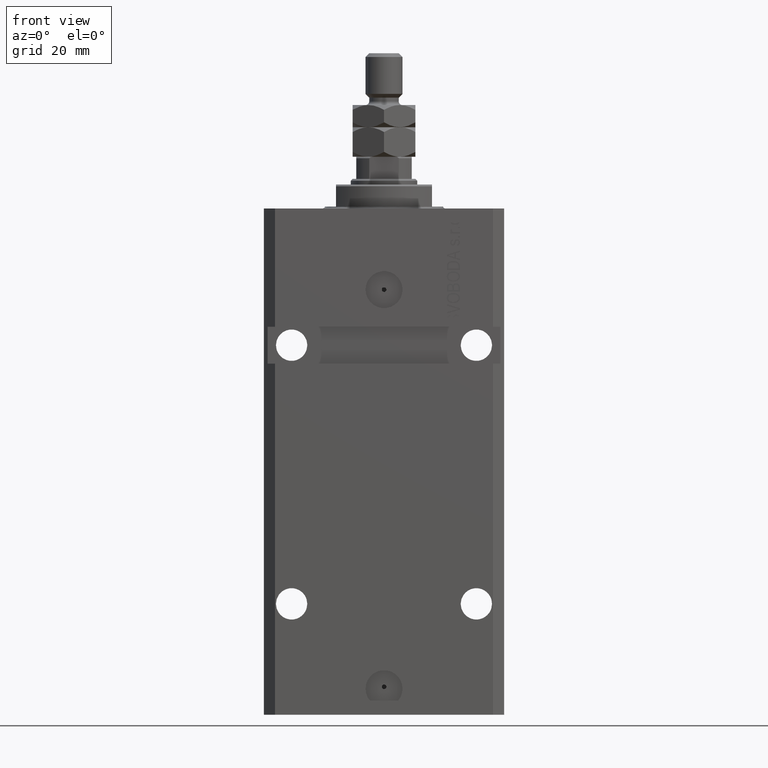
[diagram: clean part render]
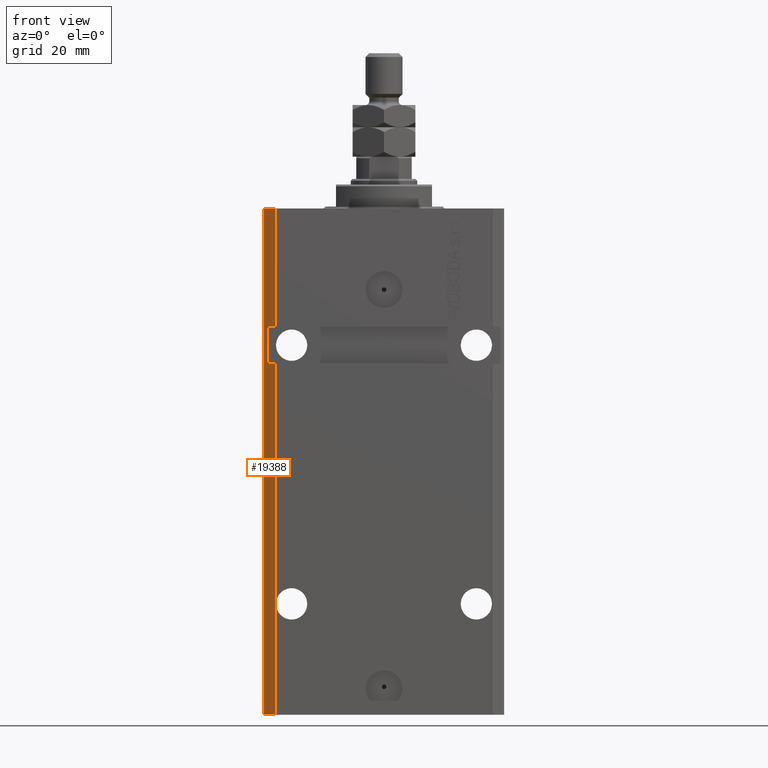
[diagram: same view with one face highlighted and labeled with its STEP entity id]
A machine part, front view. The second image highlights one B-rep face of the part: STEP entity #19388.
In plain terms, the highlighted planar face has unit normal (-0.7071, -0.7071, 0).
Its self-contained STEP definition (entity closure, byte-faithful):
#749 = DIRECTION ( 'NONE',  ( -0.7071067811865474617, 0.7071067811865474617, 7.548521435980497974E-17 ) ) ;
#1183 = CARTESIAN_POINT ( 'NONE',  ( -29.49999999999650058, -22.49999999999949907, -32.00000000000000000 ) ) ;
#1347 = CARTESIAN_POINT ( 'NONE',  ( -31.49999999999650413, -20.49999999999949907, -41.99999999999999289 ) ) ;
#1406 = ORIENTED_EDGE ( 'NONE', *, *, #32799, .F. ) ;
#1527 = DIRECTION ( 'NONE',  ( 0.000000000000000000, 0.000000000000000000, 1.000000000000000000 ) ) ;
#1742 = CARTESIAN_POINT ( 'NONE',  ( -29.49999999999650413, -22.49999999999949907, -137.0000000000000000 ) ) ;
#3393 = EDGE_CURVE ( 'NONE', #25099, #46829, #6194, .T. ) ;
#3862 = FACE_OUTER_BOUND ( 'NONE', #27138, .T. ) ;
#4555 = CARTESIAN_POINT ( 'NONE',  ( -29.49999999999650413, -22.49999999999949907, 0.000000000000000000 ) ) ;
#4689 = VECTOR ( 'NONE', #1527, 1000.000000000000000 ) ;
#6055 = EDGE_CURVE ( 'NONE', #25099, #16086, #44796, .T. ) ;
#6194 = LINE ( 'NONE', #9463, #14340 ) ;
#6751 = CARTESIAN_POINT ( 'NONE',  ( -31.49999999999650413, -20.49999999999950262, -137.0000000000000000 ) ) ;
#8007 = EDGE_CURVE ( 'NONE', #40226, #22679, #17387, .T. ) ;
#8889 = AXIS2_PLACEMENT_3D ( 'NONE', #18743, #18987, #33611 ) ;
#9463 = CARTESIAN_POINT ( 'NONE',  ( -32.49999999999650413, -19.49999999999949907, -137.0000000000000000 ) ) ;
#10028 = LINE ( 'NONE', #10277, #34219 ) ;
#10277 = CARTESIAN_POINT ( 'NONE',  ( -32.49999999999651124, -19.49999999999949551, -41.99999999999999289 ) ) ;
#10515 = ORIENTED_EDGE ( 'NONE', *, *, #15046, .F. ) ;
#11803 = DIRECTION ( 'NONE',  ( 0.7071067811865474617, -0.7071067811865474617, 0.000000000000000000 ) ) ;
#11994 = VECTOR ( 'NONE', #40532, 1000.000000000000114 ) ;
#14340 = VECTOR ( 'NONE', #37164, 1000.000000000000000 ) ;
#14630 = ORIENTED_EDGE ( 'NONE', *, *, #26132, .T. ) ;
#15046 = EDGE_CURVE ( 'NONE', #18926, #22679, #27958, .T. ) ;
#16086 = VERTEX_POINT ( 'NONE', #1742 ) ;
#17124 = CARTESIAN_POINT ( 'NONE',  ( -32.49999999999650413, -19.49999999999949907, -137.0000000000000000 ) ) ;
#17387 = LINE ( 'NONE', #6751, #4689 ) ;
#18234 = PLANE ( 'NONE',  #8889 ) ;
#18577 = VERTEX_POINT ( 'NONE', #21134 ) ;
#18686 = LINE ( 'NONE', #45359, #21512 ) ;
#18743 = CARTESIAN_POINT ( 'NONE',  ( -32.49999999999650413, -19.49999999999949907, -137.0000000000000000 ) ) ;
#18926 = VERTEX_POINT ( 'NONE', #1183 ) ;
#18987 = DIRECTION ( 'NONE',  ( -0.7071067811865475727, -0.7071067811865475727, 0.000000000000000000 ) ) ;
#19388 = ADVANCED_FACE ( 'NONE', ( #3862 ), #18234, .T. ) ;
#21134 = CARTESIAN_POINT ( 'NONE',  ( -29.49999999999650413, -22.49999999999949907, -41.99999999999999289 ) ) ;
#21512 = VECTOR ( 'NONE', #33309, 1000.000000000000000 ) ;
#21612 = EDGE_CURVE ( 'NONE', #46829, #39195, #42771, .T. ) ;
#22679 = VERTEX_POINT ( 'NONE', #46779 ) ;
#24839 = DIRECTION ( 'NONE',  ( 0.000000000000000000, 0.000000000000000000, 1.000000000000000000 ) ) ;
#25099 = VERTEX_POINT ( 'NONE', #41732 ) ;
#25407 = DIRECTION ( 'NONE',  ( 0.7071067811865474617, -0.7071067811865474617, 7.548521435980497974E-17 ) ) ;
#26132 = EDGE_CURVE ( 'NONE', #16086, #18577, #32903, .T. ) ;
#27138 = EDGE_LOOP ( 'NONE', ( #1406, #48856, #10515, #37955, #41219, #33914, #48724, #14630 ) ) ;
#27553 = VECTOR ( 'NONE', #11803, 1000.000000000000114 ) ;
#27958 = LINE ( 'NONE', #28444, #29015 ) ;
#28444 = CARTESIAN_POINT ( 'NONE',  ( -32.49999999999649702, -19.49999999999950617, -32.00000000000000000 ) ) ;
#29015 = VECTOR ( 'NONE', #749, 1000.000000000000114 ) ;
#31703 = VECTOR ( 'NONE', #24839, 1000.000000000000000 ) ;
#32799 = EDGE_CURVE ( 'NONE', #40226, #18577, #10028, .T. ) ;
#32903 = LINE ( 'NONE', #36660, #31703 ) ;
#33068 = CARTESIAN_POINT ( 'NONE',  ( -32.49999999999650413, -19.49999999999949907, 0.000000000000000000 ) ) ;
#33309 = DIRECTION ( 'NONE',  ( 0.000000000000000000, 0.000000000000000000, 1.000000000000000000 ) ) ;
#33611 = DIRECTION ( 'NONE',  ( 0.7071067811865474617, -0.7071067811865474617, 0.000000000000000000 ) ) ;
#33914 = ORIENTED_EDGE ( 'NONE', *, *, #3393, .F. ) ;
#34219 = VECTOR ( 'NONE', #25407, 1000.000000000000114 ) ;
#36660 = CARTESIAN_POINT ( 'NONE',  ( -29.49999999999650413, -22.49999999999949907, -137.0000000000000000 ) ) ;
#37164 = DIRECTION ( 'NONE',  ( 0.000000000000000000, 0.000000000000000000, 1.000000000000000000 ) ) ;
#37955 = ORIENTED_EDGE ( 'NONE', *, *, #37967, .T. ) ;
#37967 = EDGE_CURVE ( 'NONE', #18926, #39195, #18686, .T. ) ;
#39195 = VERTEX_POINT ( 'NONE', #4555 ) ;
#40226 = VERTEX_POINT ( 'NONE', #1347 ) ;
#40532 = DIRECTION ( 'NONE',  ( 0.7071067811865474617, -0.7071067811865474617, 0.000000000000000000 ) ) ;
#41219 = ORIENTED_EDGE ( 'NONE', *, *, #21612, .F. ) ;
#41732 = CARTESIAN_POINT ( 'NONE',  ( -32.49999999999650413, -19.49999999999949907, -137.0000000000000000 ) ) ;
#42771 = LINE ( 'NONE', #46302, #27553 ) ;
#44796 = LINE ( 'NONE', #17124, #11994 ) ;
#45359 = CARTESIAN_POINT ( 'NONE',  ( -29.49999999999650413, -22.49999999999949907, -137.0000000000000000 ) ) ;
#46302 = CARTESIAN_POINT ( 'NONE',  ( -32.49999999999650413, -19.49999999999949907, 0.000000000000000000 ) ) ;
#46779 = CARTESIAN_POINT ( 'NONE',  ( -31.49999999999650413, -20.49999999999950262, -32.00000000000000000 ) ) ;
#46829 = VERTEX_POINT ( 'NONE', #33068 ) ;
#48724 = ORIENTED_EDGE ( 'NONE', *, *, #6055, .T. ) ;
#48856 = ORIENTED_EDGE ( 'NONE', *, *, #8007, .T. ) ;